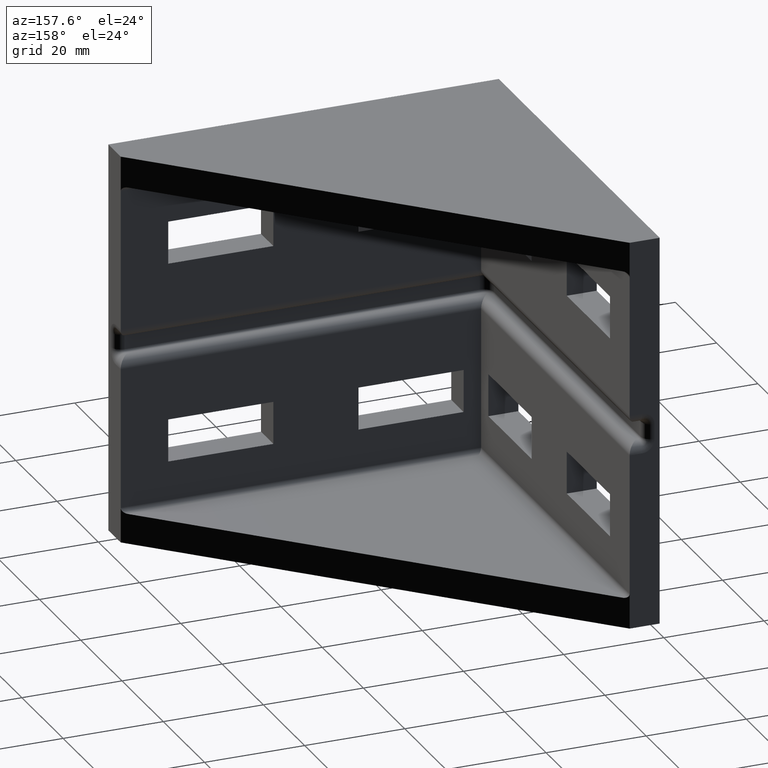
[diagram: clean part render]
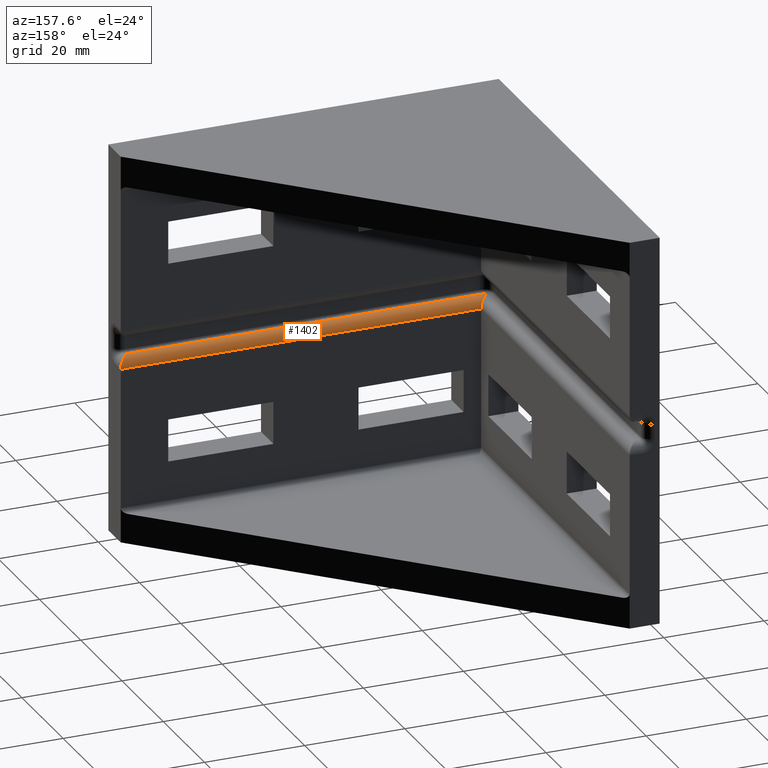
[diagram: same view with one face highlighted and labeled with its STEP entity id]
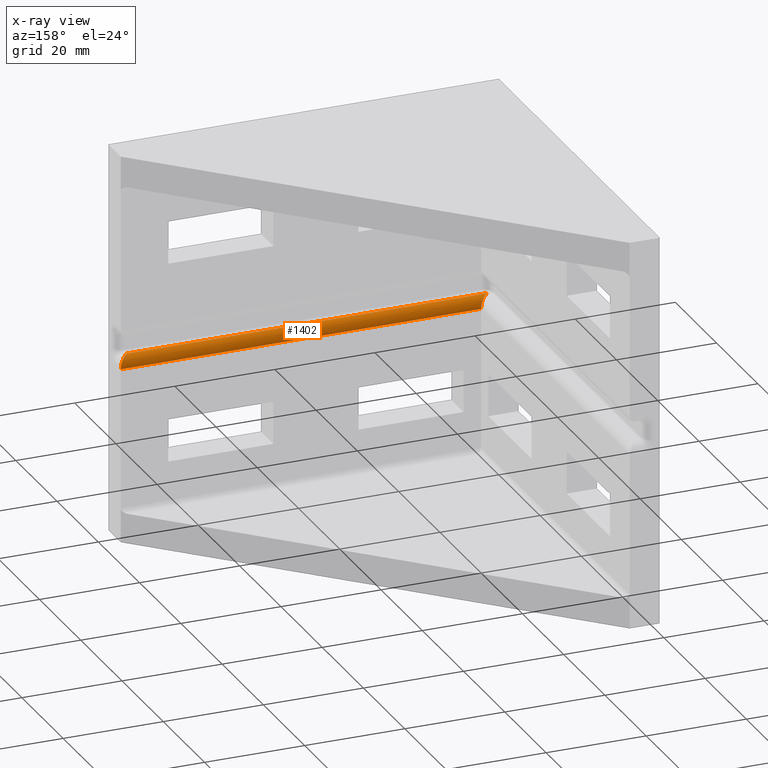
[diagram: x-ray of the same camera — body ghosted, the highlighted face saturated]
A machine part, auxiliary view. The second image highlights one B-rep face of the part: STEP entity #1402.
The next image is the same camera in x-ray: the body ghosted, the highlighted face saturated — about 0% of this face is hidden behind the body in this view.
In plain terms, the highlighted cylindrical surface (edge-blend (fillet) strip) has radius 2 mm, axis along (1, 0, 0).
Its self-contained STEP definition (entity closure, byte-faithful):
#35=CYLINDRICAL_SURFACE('',#1509,2.);
#50=ELLIPSE('',#1506,2.82842712474576,1.99999999999969);
#51=ELLIPSE('',#1510,2.82842712474608,1.99999999999995);
#137=FACE_OUTER_BOUND('',#228,.T.);
#228=EDGE_LOOP('',(#1250,#1251,#1252,#1253));
#245=LINE('',#1932,#404);
#295=LINE('',#2034,#454);
#404=VECTOR('',#1542,72.);
#454=VECTOR('',#1600,72.);
#589=VERTEX_POINT('',#1929);
#590=VERTEX_POINT('',#1931);
#635=VERTEX_POINT('',#2027);
#638=VERTEX_POINT('',#2032);
#711=EDGE_CURVE('',#589,#590,#245,.T.);
#761=EDGE_CURVE('',#638,#635,#295,.T.);
#888=EDGE_CURVE('',#589,#635,#50,.T.);
#890=EDGE_CURVE('',#590,#638,#51,.T.);
#1250=ORIENTED_EDGE('',*,*,#888,.T.);
#1251=ORIENTED_EDGE('',*,*,#761,.F.);
#1252=ORIENTED_EDGE('',*,*,#890,.F.);
#1253=ORIENTED_EDGE('',*,*,#711,.F.);
#1402=ADVANCED_FACE('',(#137),#35,.T.);
#1506=AXIS2_PLACEMENT_3D('',#2282,#1871,#1872);
#1509=AXIS2_PLACEMENT_3D('',#2285,#1877,#1878);
#1510=AXIS2_PLACEMENT_3D('',#2286,#1879,#1880);
#1542=DIRECTION('',(-1.,0.,0.));
#1600=DIRECTION('',(1.,0.,0.));
#1871=DIRECTION('center_axis',(-0.707106781186548,0.707106781186547,-6.15506745355142E-16));
#1872=DIRECTION('ref_axis',(0.707106781186547,0.707106781186548,-1.8778114343581E-13));
#1877=DIRECTION('center_axis',(1.,0.,0.));
#1878=DIRECTION('ref_axis',(0.,0.,-1.));
#1879=DIRECTION('center_axis',(-0.707106781186548,0.707106781186548,0.));
#1880=DIRECTION('ref_axis',(0.707106781186548,0.707106781186548,-3.89375319828896E-14));
#1929=CARTESIAN_POINT('',(76.,4.,37.));
#1931=CARTESIAN_POINT('',(4.00000000000001,4.,37.));
#1932=CARTESIAN_POINT('',(-0.5,4.,37.));
#2027=CARTESIAN_POINT('',(78.,6.,35.));
#2032=CARTESIAN_POINT('',(6.00000000000001,6.,35.));
#2034=CARTESIAN_POINT('',(6.00000000000001,6.,35.));
#2282=CARTESIAN_POINT('Origin',(76.0000000000003,4.00000000000031,35.0000000000003));
#2285=CARTESIAN_POINT('Origin',(6.00000000000001,4.,35.));
#2286=CARTESIAN_POINT('Origin',(4.00000000000009,4.00000000000008,35.0000000000001));